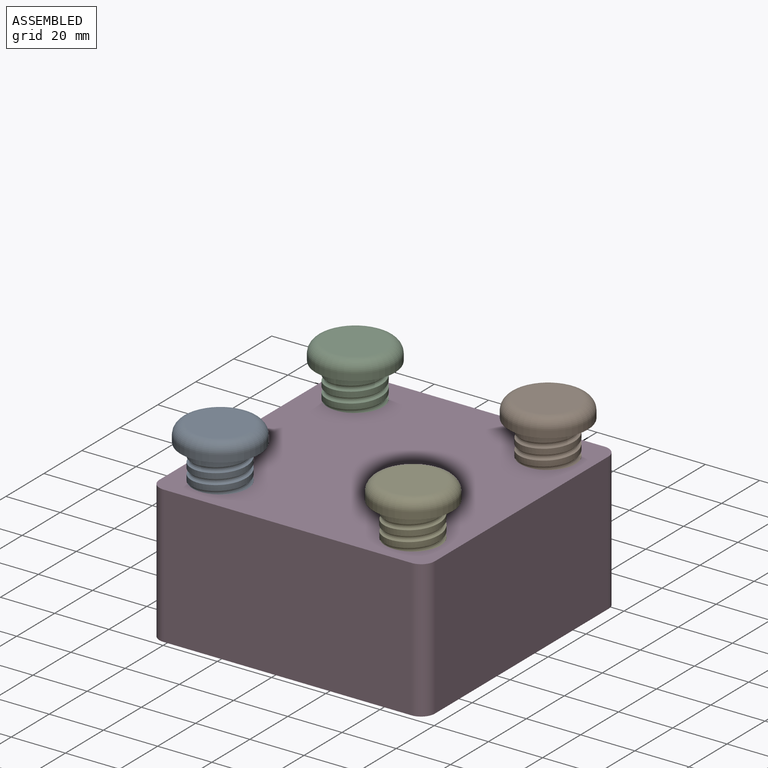
[diagram: assembled view]
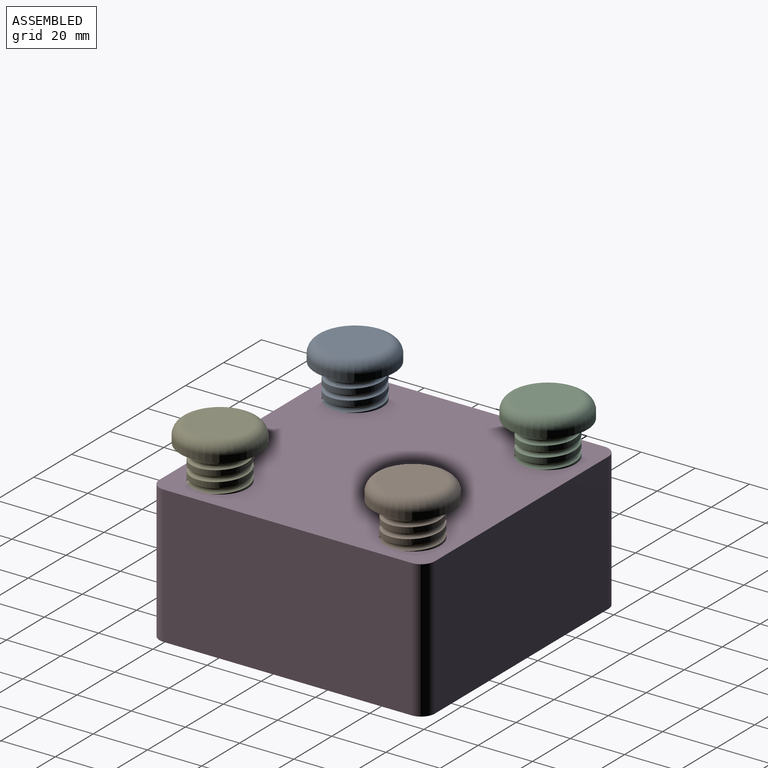
[diagram: assembled view, second angle]
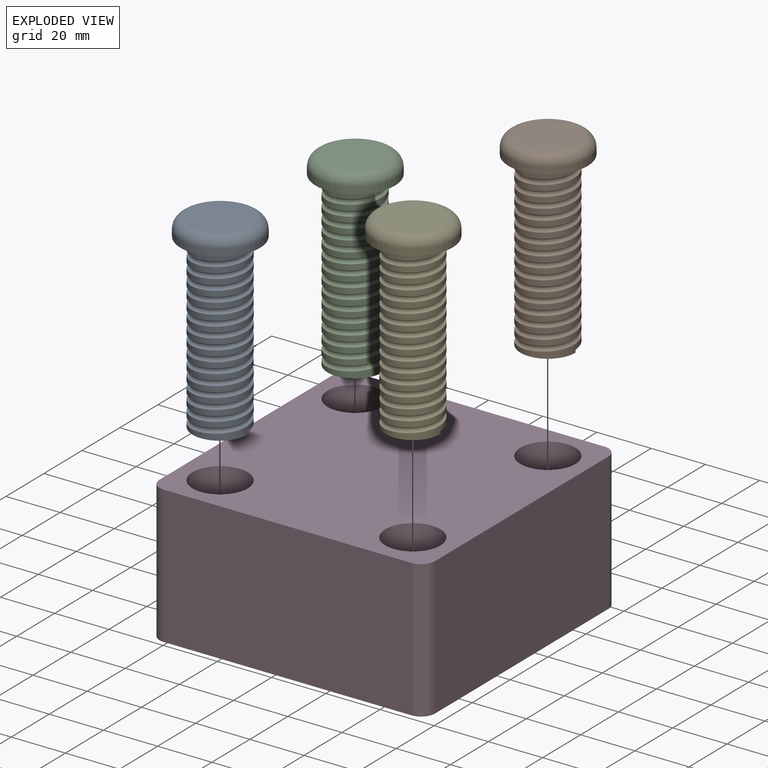
[diagram: exploded view]
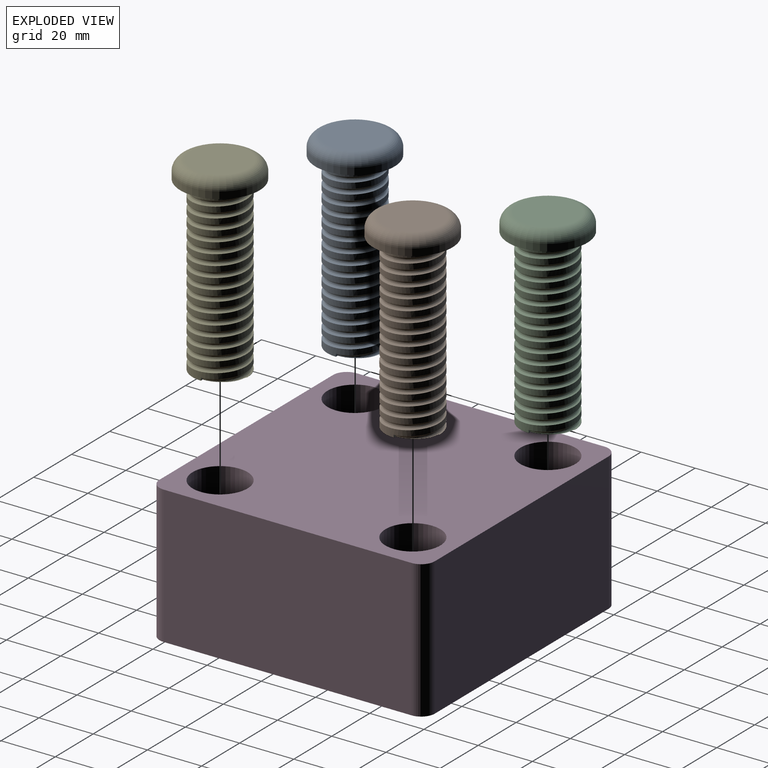
[diagram: exploded view, second angle]
ASSEMBLY  parts=5 mates=4
PART A: 9 faces, bbox 32.6x32.6x71.8 mm
  f0: plane 21.28x21.27mm, normal (0,0,-1), area 312.7mm2, adj f1,f6,f8
  f1: cylinder r=10.16mm len=63.5mm, axis (0,0,-1), area 2287mm2, adj f0,f4,f6,f7,f8
  f2: cylinder r=14.63mm len=29.26mm, axis (0,0,-1), area 233.4mm2, adj f4,f5
  f3: plane 21.64x21.64mm, normal (0,0,1), area 367.6mm2, adj f5
  f4: plane 30.14x30.14mm, normal (0,0,-1), area 335.4mm2, adj f1,f2,f7,f8
  f5: torus R=10.82mm, axis (0,0,1), area 498mm2, adj f2,f3
  f6: plane 1.25x1.25mm, normal (0.01,1,0), area 0.7mm2, adj f0,f1,f8
  f7: plane 2.23x2.23mm, normal (-0.01,-1,0), area 2.2mm2, adj f1,f4,f8
  f8: bspline ~65.45x27.98mm, area 2942mm2, adj f0,f1,f4,f6,f7
PART B: same geometry as A
PART C: same geometry as A
PART D: 14 faces, bbox 101.6x101.6x50.8 mm
  f0: plane 91.44x50.8mm, normal (0,1,0), area 4645.2mm2, adj f8,f9,f10,f13
  f1: plane 91.44x50.8mm, normal (-1,0,0), area 4645.2mm2, adj f8,f9,f10,f11
  f2: plane 91.44x50.8mm, normal (0,-1,0), area 4645.2mm2, adj f8,f9,f11,f12
  f3: cylinder r=10.16mm len=50.8mm, axis (0,0,-1), area 3242.9mm2, adj f8,f9
  f4: cylinder r=10.16mm len=50.8mm, axis (0,0,-1), area 3242.9mm2, adj f8,f9
  f5: cylinder r=10.16mm len=50.8mm, axis (0,0,-1), area 3242.9mm2, adj f8,f9
  f6: cylinder r=10.16mm len=50.8mm, axis (0,0,-1), area 3242.9mm2, adj f8,f9
  f7: plane 91.44x50.8mm, normal (1,0,0), area 4645.2mm2, adj f8,f9,f12,f13
  f8: plane 101.6x101.6mm, normal (0,0,1), area 9003.2mm2, adj f0,f1,f2,f3,f4,f5,f6,f7
  f9: plane 101.6x101.6mm, normal (0,0,-1), area 9003.2mm2, adj f0,f1,f2,f3,f4,f5,f6,f7
  f10: cylinder r=5.08mm len=50.8mm, axis (0,0,-1), area 405.4mm2, adj f0,f1,f8,f9
  f11: cylinder r=5.08mm len=50.8mm, axis (0,0,-1), area 405.4mm2, adj f1,f2,f8,f9
  f12: cylinder r=5.08mm len=50.8mm, axis (0,0,-1), area 405.4mm2, adj f2,f7,f8,f9
  f13: cylinder r=5.08mm len=50.8mm, axis (0,0,-1), area 405.4mm2, adj f0,f7,f8,f9
PART E: same geometry as A
PLACE A t=(66.55,0,-67.27)mm
PLACE B t=(137.67,71.12,-67.27)mm
PLACE C t=(66.55,71.12,-67.27)mm
PLACE D t=(66.55,71.12,-67.27)mm
PLACE E t=(137.67,0,-67.27)mm
MATE cylindrical C.f1 <-> D.f3  axis (0,0,-1) through (31.96,104.08,-67.27)mm
MATE cylindrical E.f1 <-> D.f5  axis (0,0,-1) through (103.08,32.96,-67.27)mm
MATE cylindrical B.f1 <-> D.f6  axis (0,0,-1) through (103.08,104.08,-67.27)mm
MATE cylindrical A.f1 <-> D.f4  axis (0,0,-1) through (31.96,32.96,-67.27)mm
